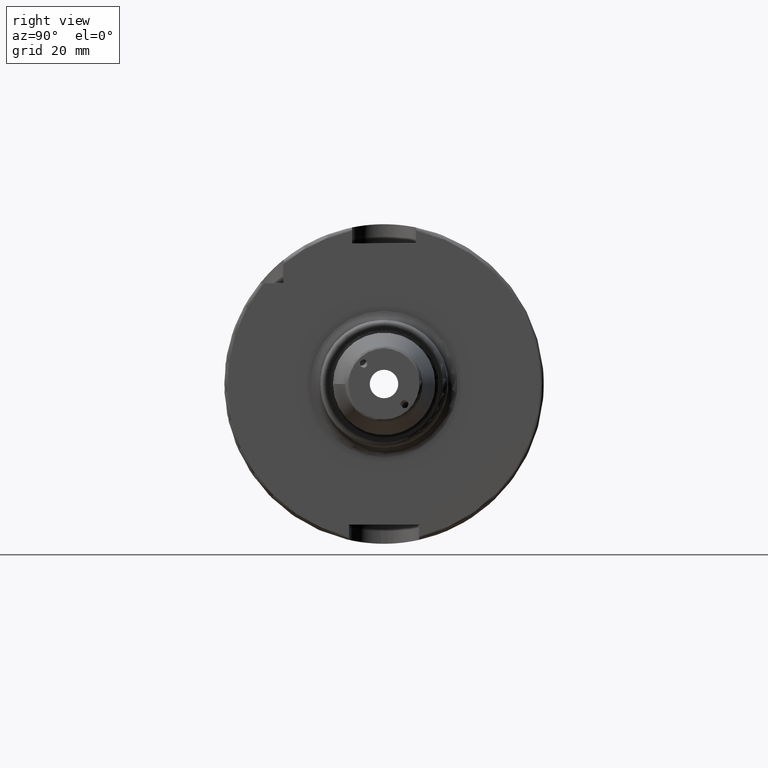
[diagram: clean part render]
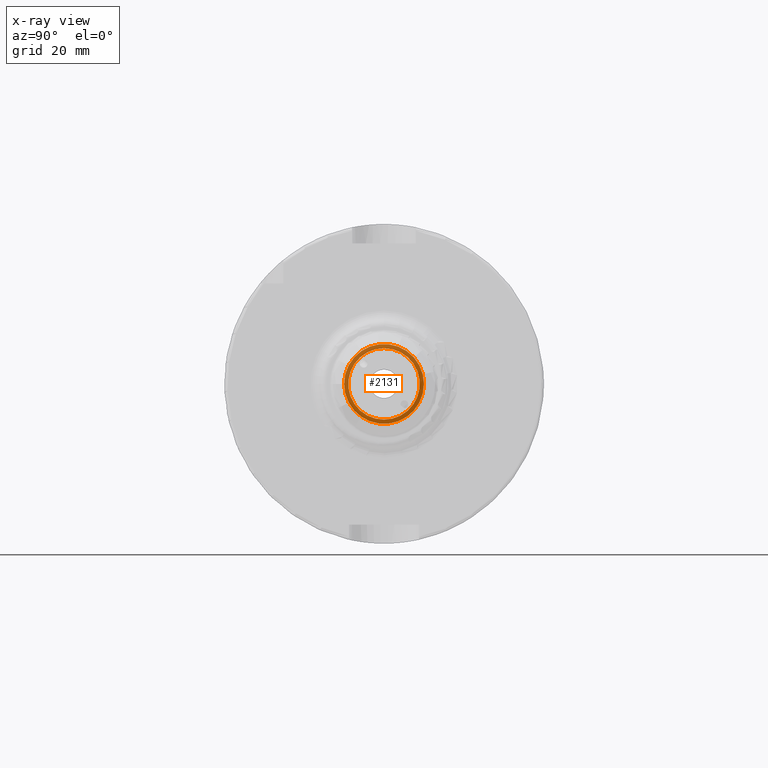
[diagram: x-ray — body ghosted, one internal face saturated and labeled with its STEP entity id]
A machine part, right view, then the same camera in x-ray: the body is ghosted and one INTERNAL B-rep face — a face not visible from any outside direction — is saturated and labeled: STEP entity #2131.
In plain terms, the highlighted planar face has unit normal (-1, 0, 0).
Its self-contained STEP definition (entity closure, byte-faithful):
#96=FACE_BOUND('',#452,.T.);
#133=PLANE('',#2402);
#317=FACE_OUTER_BOUND('',#451,.T.);
#451=EDGE_LOOP('',(#1928));
#452=EDGE_LOOP('',(#1929));
#800=CIRCLE('',#2393,11.188101);
#805=CIRCLE('',#2401,12.5);
#1021=VERTEX_POINT('',#4553);
#1025=VERTEX_POINT('',#4566);
#1328=EDGE_CURVE('',#1021,#1021,#800,.T.);
#1334=EDGE_CURVE('',#1025,#1025,#805,.T.);
#1928=ORIENTED_EDGE('',*,*,#1334,.F.);
#1929=ORIENTED_EDGE('',*,*,#1328,.T.);
#2131=ADVANCED_FACE('',(#317,#96),#133,.F.);
#2393=AXIS2_PLACEMENT_3D('',#4555,#2985,#2986);
#2401=AXIS2_PLACEMENT_3D('',#4568,#3002,#3003);
#2402=AXIS2_PLACEMENT_3D('',#4569,#3004,#3005);
#2985=DIRECTION('center_axis',(-1.,0.,0.));
#2986=DIRECTION('ref_axis',(0.,0.,1.));
#3002=DIRECTION('center_axis',(-1.,0.,0.));
#3003=DIRECTION('ref_axis',(0.,0.,1.));
#3004=DIRECTION('center_axis',(-1.,0.,0.));
#3005=DIRECTION('ref_axis',(0.,0.,1.));
#4553=CARTESIAN_POINT('',(22.5,-1.37014720781873E-15,-11.188101));
#4555=CARTESIAN_POINT('Origin',(22.5,0.,0.));
#4566=CARTESIAN_POINT('',(22.5,-12.5,1.53080849893419E-15));
#4568=CARTESIAN_POINT('Origin',(22.5,0.,0.));
#4569=CARTESIAN_POINT('Origin',(22.5,10.,0.));